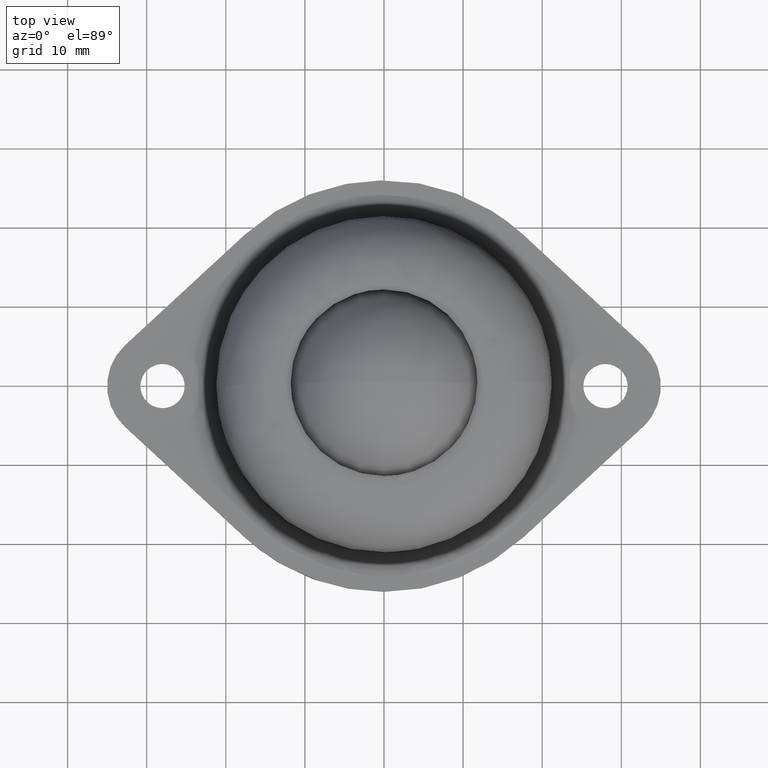
[diagram: clean part render]
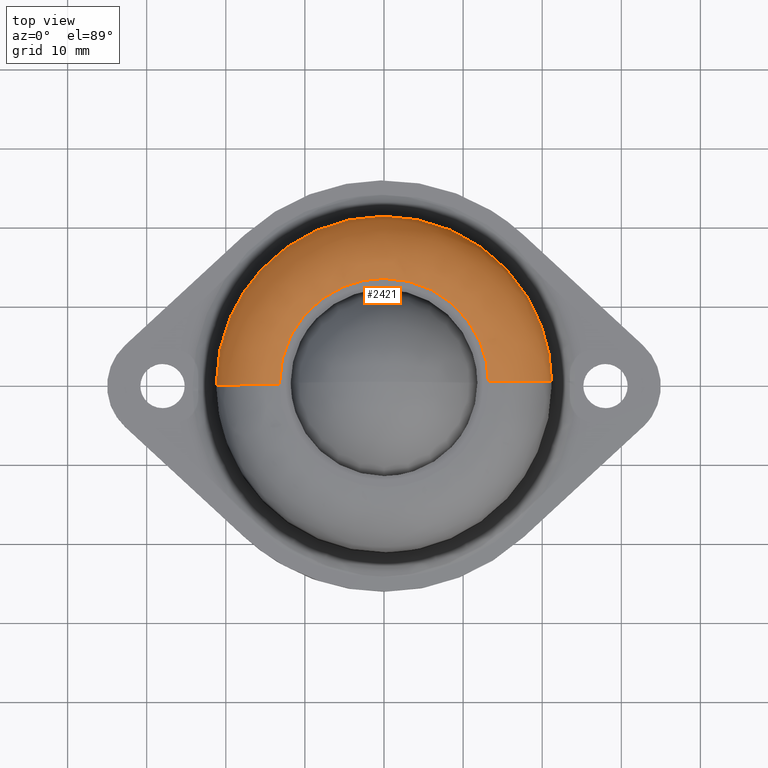
[diagram: same view with one face highlighted and labeled with its STEP entity id]
A machine part, top view. The second image highlights one B-rep face of the part: STEP entity #2421.
In plain terms, the highlighted face is a freeform B-spline surface patch.
Its self-contained STEP definition (entity closure, byte-faithful):
#2095=CARTESIAN_POINT('',(-13.198957784154921,-0.165871726724104,24.0));
#2096=VERTEX_POINT('',#2095);
#2097=CARTESIAN_POINT('',(-13.199999999999999,0.0,24.0));
#2098=VERTEX_POINT('',#2097);
#2099=CARTESIAN_POINT('',(-13.198957784154921,-0.165871726724104,24.0));
#2100=CARTESIAN_POINT('',(-13.199999999999999,0.0,24.0));
#2101=QUASI_UNIFORM_CURVE('',1,(#2099,#2100),.UNSPECIFIED.,.F.,.U.);
#2102=EDGE_CURVE('',#2096,#2098,#2101,.T.);
#2140=CARTESIAN_POINT('',(13.198957784154921,0.165871726724102,24.0));
#2141=VERTEX_POINT('',#2140);
#2147=CARTESIAN_POINT('',(-0.082906292588280,13.199739639352920,24.000000000000011));
#2148=VERTEX_POINT('',#2147);
#2149=CARTESIAN_POINT('',(-0.082906292588280,13.199739639352920,24.000000000000011));
#2150=CARTESIAN_POINT('',(0.454882842363798,13.203130861495961,23.999999999999961));
#2151=CARTESIAN_POINT('',(1.584673825963870,13.141108982467911,24.000000000000291));
#2152=CARTESIAN_POINT('',(3.201172025365566,12.841662750802691,23.999999999999460));
#2153=CARTESIAN_POINT('',(4.689692742454557,12.367368431876971,24.000000000000838));
#2154=CARTESIAN_POINT('',(6.067468185277897,11.754635358534779,23.999999999999542));
#2155=CARTESIAN_POINT('',(7.437668819360782,10.949032045783490,24.000000000000391));
#2156=CARTESIAN_POINT('',(8.672661647684851,9.990803042593976,23.999999999999549));
#2157=CARTESIAN_POINT('',(9.979349489879482,8.708587362459131,24.000000000000949));
#2158=CARTESIAN_POINT('',(11.063964965078091,7.294435532750293,23.999999999997609));
#2159=CARTESIAN_POINT('',(11.931582613303750,5.711613770669857,24.000000000002292));
#2160=CARTESIAN_POINT('',(12.563872349071870,4.166551472204845,23.999999999998341));
#2161=CARTESIAN_POINT('',(13.049334294906830,2.342238380491585,24.000000000001251));
#2162=CARTESIAN_POINT('',(13.189552886789960,0.918736362685605,23.999999999999421));
#2163=CARTESIAN_POINT('',(13.198957784154921,0.165871726724102,24.0));
#2164=B_SPLINE_CURVE_WITH_KNOTS('',3,(#2149,#2150,#2151,#2152,#2153,#2154,#2155,#2156,#2157,#2158,#2159,#2160,#2161,#2162,#2163),.UNSPECIFIED.,.F.,.U.,(4,1,1,1,1,1,1,1,1,1,1,1,4),(0.000000048330435,1.613401244678471,3.388146182976833,4.920881741538409,6.292283827572305,7.905697276054193,9.680431331561280,10.971139840467391,13.391253697549359,15.004658657260871,16.376054071067092,18.392811101295809,20.651574397064660),.UNSPECIFIED.);
#2165=EDGE_CURVE('',#2148,#2141,#2164,.T.);
#2167=CARTESIAN_POINT('',(-13.199999999999999,0.0,24.0));
#2168=CARTESIAN_POINT('',(-13.200190451064509,0.968060029411774,23.999999999999940));
#2169=CARTESIAN_POINT('',(-13.033551445764290,2.473809569095353,24.000000000000099));
#2170=CARTESIAN_POINT('',(-12.420660275488791,4.596213304777611,23.999999999999979));
#2171=CARTESIAN_POINT('',(-11.658847501972820,6.294453410049940,24.000000000000011));
#2172=CARTESIAN_POINT('',(-10.638310830942171,7.881645664283914,24.000000000000099));
#2173=CARTESIAN_POINT('',(-9.607006928446653,9.091527634372445,23.999999999999911));
#2174=CARTESIAN_POINT('',(-8.313099043372040,10.308974311883221,23.999999999999989));
#2175=CARTESIAN_POINT('',(-6.617776492532683,11.512772236391950,24.000000000000320));
#2176=CARTESIAN_POINT('',(-4.479108755887308,12.488312788004480,23.999999999999741));
#2177=CARTESIAN_POINT('',(-2.260172235009975,13.063784216655471,24.000000000000600));
#2178=CARTESIAN_POINT('',(-0.835817709264143,13.195068741564990,23.999999999999460));
#2179=CARTESIAN_POINT('',(-0.082906292588280,13.199739639352920,24.000000000000011));
#2180=B_SPLINE_CURVE_WITH_KNOTS('',3,(#2167,#2168,#2169,#2170,#2171,#2172,#2173,#2174,#2175,#2176,#2177,#2178,#2179),.UNSPECIFIED.,.F.,.U.,(4,1,1,1,1,1,1,1,1,1,4),(0.000000048365269,2.904121617797919,4.517541688351233,6.614978400882466,8.470406815404287,10.164499971814720,11.374530612695059,13.794647383691681,16.376103565506568,18.392866691214550,20.651636813693720),.UNSPECIFIED.);
#2181=EDGE_CURVE('',#2098,#2148,#2180,.T.);
#2302=CARTESIAN_POINT('',(-12.638263124771079,-0.512330064545714,23.980634930461679));
#2303=CARTESIAN_POINT('',(-12.640471091920277,-0.336634870364734,23.980634930461679));
#2304=CARTESIAN_POINT('',(-12.801586205957882,12.483823648069517,23.980634930461690));
#2305=CARTESIAN_POINT('',(-0.158881278944184,12.642704927013703,23.980634930461672));
#2306=CARTESIAN_POINT('',(12.483823648069514,12.801586205957882,23.980634930461690));
#2307=CARTESIAN_POINT('',(12.644938762105607,-0.018872312355276,23.980634930461676));
#2308=CARTESIAN_POINT('',(12.647146729253315,-0.194567506417960,23.980634930461676));
#2309=CARTESIAN_POINT('',(-21.810908843526800,-0.884170888458787,24.620297032631665));
#2310=CARTESIAN_POINT('',(-21.814719317303556,-0.580958981356125,24.620297032631658));
#2311=CARTESIAN_POINT('',(-22.092769159350375,21.544379707764669,24.620297032631655));
#2312=CARTESIAN_POINT('',(-0.274194725792854,21.818574433557533,24.620297032631665));
#2313=CARTESIAN_POINT('',(21.544379707764666,22.092769159350382,24.620297032631655));
#2314=CARTESIAN_POINT('',(21.822429549808874,-0.032569529561439,24.620297032631669));
#2315=CARTESIAN_POINT('',(21.826240023583058,-0.335781436459950,24.620297032631651));
#2316=CARTESIAN_POINT('',(-21.171521707950177,-0.858251404966026,15.443702998597573));
#2317=CARTESIAN_POINT('',(-21.175220477628276,-0.563928159686029,15.443702998597571));
#2318=CARTESIAN_POINT('',(-21.445119284185047,20.912805877992270,15.443702998597573));
#2319=CARTESIAN_POINT('',(-0.266156703096384,21.178962581088665,15.443702998597569));
#2320=CARTESIAN_POINT('',(20.912805877992270,21.445119284185047,15.443702998597573));
#2321=CARTESIAN_POINT('',(21.182704684546504,-0.031614753290411,15.443702998597564));
#2322=CARTESIAN_POINT('',(21.186403454222102,-0.325937998372241,15.443702998597569));
#2330=(BOUNDED_SURFACE()B_SPLINE_SURFACE(2,2,((#2302,#2309,#2316),(#2303,#2310,#2317),(#2304,#2311,#2318),(#2305,#2312,#2319),(#2306,#2313,#2320),(#2307,#2314,#2321),(#2308,#2315,#2322)),.UNSPECIFIED.,.F.,.F.,.U.)B_SPLINE_SURFACE_WITH_KNOTS((3,1,2,1,3),(3,3),(0.0,0.701864499801763,35.795089465636472,70.888314431471159,71.590178930791993),(0.0,14.581839715881159),.UNSPECIFIED.)GEOMETRIC_REPRESENTATION_ITEM()RATIONAL_B_SPLINE_SURFACE(((0.927077710680728,0.608371547720354,0.927077722433690),(0.921709902960830,0.604849058232368,0.921709914645742),(0.647951709431553,0.425202094466791,0.647951717645915),(0.916342095240933,0.601326568744382,0.916342106857795),(0.647951709431553,0.425202094466791,0.647951717645915),(0.921709902957152,0.604849058229954,0.921709914642064),(0.927077710673371,0.608371547715527,0.927077722426333)))REPRESENTATION_ITEM('')SURFACE());
#2331=CARTESIAN_POINT('',(-21.198326137120890,-0.266400045527633,16.000000000075641));
#2332=VERTEX_POINT('',#2331);
#2333=CARTESIAN_POINT('',(-21.199999999999999,0.0,16.0));
#2334=VERTEX_POINT('',#2333);
#2335=CARTESIAN_POINT('',(-21.198326137120890,-0.266400045527633,16.000000000075641));
#2336=CARTESIAN_POINT('',(-21.199999999999999,0.0,16.0));
#2337=QUASI_UNIFORM_CURVE('',1,(#2335,#2336),.UNSPECIFIED.,.F.,.U.);
#2338=EDGE_CURVE('',#2332,#2334,#2337,.T.);
#2339=ORIENTED_EDGE('',*,*,#2338,.F.);
#2340=CARTESIAN_POINT('',(-13.198957784154921,-0.165871726724104,24.0));
#2341=CARTESIAN_POINT('',(-13.918877488007480,-0.174918980757205,24.000248518643080));
#2342=CARTESIAN_POINT('',(-15.096725260573621,-0.189721031530169,23.839823724012721));
#2343=CARTESIAN_POINT('',(-16.728384323030479,-0.210226143346803,23.233284480822189));
#2344=CARTESIAN_POINT('',(-17.937331224486499,-0.225419017861887,22.498468420091239));
#2345=CARTESIAN_POINT('',(-19.018852444825431,-0.239010529747530,21.542048790761822));
#2346=CARTESIAN_POINT('',(-19.805057352678631,-0.248890792052093,20.571850059474968));
#2347=CARTESIAN_POINT('',(-20.540491893319771,-0.258133021516863,19.292140246644980));
#2348=CARTESIAN_POINT('',(-21.064047519237949,-0.264712561854033,17.799854302997652));
#2349=CARTESIAN_POINT('',(-21.198410765050941,-0.266401109058933,16.589051265824139));
#2350=CARTESIAN_POINT('',(-21.198326137120890,-0.266400045527633,16.000000000075641));
#2351=B_SPLINE_CURVE_WITH_KNOTS('',3,(#2340,#2341,#2342,#2343,#2344,#2345,#2346,#2347,#2348,#2349,#2350),.UNSPECIFIED.,.F.,.U.,(4,1,1,1,1,1,1,1,4),(0.000000021309591,2.159848259757119,3.534318107954704,5.203317636392998,6.381395309485581,7.854022387899827,8.933955143744479,10.799293411672309,12.566449462582151),.UNSPECIFIED.);
#2352=EDGE_CURVE('',#2096,#2332,#2351,.T.);
#2353=ORIENTED_EDGE('',*,*,#2352,.F.);
#2354=ORIENTED_EDGE('',*,*,#2102,.T.);
#2355=ORIENTED_EDGE('',*,*,#2181,.T.);
#2356=ORIENTED_EDGE('',*,*,#2165,.T.);
#2357=CARTESIAN_POINT('',(21.198326137120890,0.266400045527629,16.000000000075641));
#2358=VERTEX_POINT('',#2357);
#2359=CARTESIAN_POINT('',(13.198957784154921,0.165871726724102,24.0));
#2360=CARTESIAN_POINT('',(13.624344770162070,0.171217578635343,24.000021489966450));
#2361=CARTESIAN_POINT('',(14.540568154179530,0.182731787318714,23.926764482675349));
#2362=CARTESIAN_POINT('',(15.845468336526430,0.199130509801933,23.591377552389439));
#2363=CARTESIAN_POINT('',(17.102463527384991,0.214927208715329,23.024873997520970));
#2364=CARTESIAN_POINT('',(18.167474084995579,0.228311230576249,22.313188039364469));
#2365=CARTESIAN_POINT('',(19.153085548822901,0.240697441473042,21.397534709882770));
#2366=CARTESIAN_POINT('',(20.035687039634769,0.251789122727904,20.252185385963479));
#2367=CARTESIAN_POINT('',(20.663964086724810,0.259684700530856,18.984520711014120));
#2368=CARTESIAN_POINT('',(21.093025785062750,0.265076732646896,17.538027596929851));
#2369=CARTESIAN_POINT('',(21.198424686484280,0.266401284010028,16.589056854390780));
#2370=CARTESIAN_POINT('',(21.198326137120890,0.266400045527629,16.000000000075641));
#2371=B_SPLINE_CURVE_WITH_KNOTS('',3,(#2359,#2360,#2361,#2362,#2363,#2364,#2365,#2366,#2367,#2368,#2369,#2370),.UNSPECIFIED.,.F.,.U.,(4,1,1,1,1,1,1,1,1,4),(0.000000021309591,1.276268714579626,2.748908517542970,4.025198703185200,5.399669422748557,6.577737788321244,8.050380790166493,9.719365409904004,10.799293411672309,12.566449462582151),.UNSPECIFIED.);
#2372=EDGE_CURVE('',#2141,#2358,#2371,.T.);
#2373=ORIENTED_EDGE('',*,*,#2372,.T.);
#2374=CARTESIAN_POINT('',(-0.133198170693897,21.199581558307319,16.000000000037819));
#2375=VERTEX_POINT('',#2374);
#2376=CARTESIAN_POINT('',(-0.133198170693897,21.199581558307319,16.000000000037819));
#2377=CARTESIAN_POINT('',(1.291965262151348,21.208751280545560,16.000000000040320));
#2378=CARTESIAN_POINT('',(3.409347498943610,21.007601409135589,16.000000000044238));
#2379=CARTESIAN_POINT('',(6.178363578462929,20.317311103577971,16.000000000049020));
#2380=CARTESIAN_POINT('',(8.660844905795663,19.424978616434981,16.000000000053490));
#2381=CARTESIAN_POINT('',(11.041266048480100,18.177696251542940,16.000000000057820));
#2382=CARTESIAN_POINT('',(13.434371039715920,16.468690696945551,16.000000000061959));
#2383=CARTESIAN_POINT('',(15.412318494483070,14.654114312335009,16.000000000065391));
#2384=CARTESIAN_POINT('',(17.481116845778839,12.152328950458701,16.000000000069150));
#2385=CARTESIAN_POINT('',(19.241241135168380,9.162418995186380,16.000000000072681));
#2386=CARTESIAN_POINT('',(20.385567138961900,6.073296051722824,16.000000000073999));
#2387=CARTESIAN_POINT('',(21.029217310255330,3.114823134526480,16.000000000075591));
#2388=CARTESIAN_POINT('',(21.185353181131269,1.302804474943029,16.000000000075769));
#2389=CARTESIAN_POINT('',(21.198326137120890,0.266400045527629,16.000000000075641));
#2390=B_SPLINE_CURVE_WITH_KNOTS('',3,(#2376,#2377,#2378,#2379,#2380,#2381,#2382,#2383,#2384,#2385,#2386,#2387,#2388,#2389),.UNSPECIFIED.,.F.,.U.,(4,1,1,1,1,1,1,1,1,1,1,4),(0.000000036402049,4.275524051817651,6.348509223687238,8.551055082270413,12.178780144332610,14.381330964227690,17.361204191798841,20.211563748615230,24.098425555131449,27.726146654608080,30.058272239961980,33.167725733109080),.UNSPECIFIED.);
#2391=EDGE_CURVE('',#2375,#2358,#2390,.T.);
#2392=ORIENTED_EDGE('',*,*,#2391,.F.);
#2393=CARTESIAN_POINT('',(-15.560100181656340,14.398725024696400,16.000000000010228));
#2394=VERTEX_POINT('',#2393);
#2395=CARTESIAN_POINT('',(-15.560100181656340,14.398725024696400,16.000000000010228));
#2396=CARTESIAN_POINT('',(-14.916113808886760,15.094697210867171,16.000000000011429));
#2397=CARTESIAN_POINT('',(-13.435876496338629,16.493288343503419,16.000000000013980));
#2398=CARTESIAN_POINT('',(-11.028772708606819,18.187507994882161,16.000000000018460));
#2399=CARTESIAN_POINT('',(-8.490902705214129,19.485297676121291,16.000000000022819));
#2400=CARTESIAN_POINT('',(-5.811992152712273,20.457522800163400,16.000000000027679));
#2401=CARTESIAN_POINT('',(-3.022123178960778,21.054338787596780,16.000000000032848));
#2402=CARTESIAN_POINT('',(-1.036234865382090,21.193929068978989,16.000000000035978));
#2403=CARTESIAN_POINT('',(-0.133198170693897,21.199581558307319,16.000000000037819));
#2404=B_SPLINE_CURVE_WITH_KNOTS('',3,(#2395,#2396,#2397,#2398,#2399,#2400,#2401,#2402,#2403),.UNSPECIFIED.,.F.,.U.,(4,1,1,1,1,1,4),(9.911449E-009,2.844623962087375,6.095639180133173,8.804794484602146,11.378516554016910,14.629523364673719,17.338693274991751),.UNSPECIFIED.);
#2405=EDGE_CURVE('',#2394,#2375,#2404,.T.);
#2406=ORIENTED_EDGE('',*,*,#2405,.F.);
#2407=CARTESIAN_POINT('',(-21.199999999999999,0.0,16.0));
#2408=CARTESIAN_POINT('',(-21.200039785415719,0.948093163740555,16.000000000000028));
#2409=CARTESIAN_POINT('',(-21.080895188033679,2.720603367199323,16.000000000000231));
#2410=CARTESIAN_POINT('',(-20.622721679202179,5.071283414920205,16.000000000001101));
#2411=CARTESIAN_POINT('',(-19.939883027025271,7.321842885265500,16.000000000002380));
#2412=CARTESIAN_POINT('',(-18.888262859177811,9.792248417113958,16.000000000004231));
#2413=CARTESIAN_POINT('',(-17.379118405664681,12.262919109527409,16.000000000006949));
#2414=CARTESIAN_POINT('',(-16.120046891684812,13.793632424752641,16.000000000009219));
#2415=CARTESIAN_POINT('',(-15.560100181656340,14.398725024696400,16.000000000010228));
#2416=B_SPLINE_CURVE_WITH_KNOTS('',3,(#2407,#2408,#2409,#2410,#2411,#2412,#2413,#2414,#2415),.UNSPECIFIED.,.F.,.U.,(4,1,1,1,1,1,4),(9.546564E-009,2.844276346913162,5.317570933523738,7.172546171315558,9.893142914260956,13.355759814005870,15.829041741857170),.UNSPECIFIED.);
#2417=EDGE_CURVE('',#2334,#2394,#2416,.T.);
#2418=ORIENTED_EDGE('',*,*,#2417,.F.);
#2419=EDGE_LOOP('',(#2339,#2353,#2354,#2355,#2356,#2373,#2392,#2406,#2418));
#2420=FACE_OUTER_BOUND('',#2419,.T.);
#2421=ADVANCED_FACE('',(#2420),#2330,.T.);